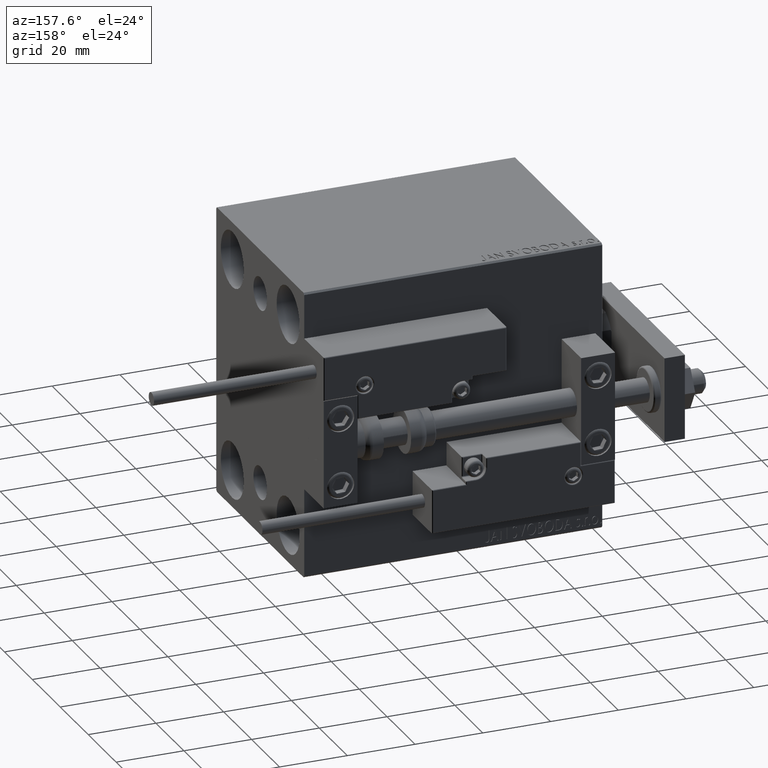
[diagram: clean part render]
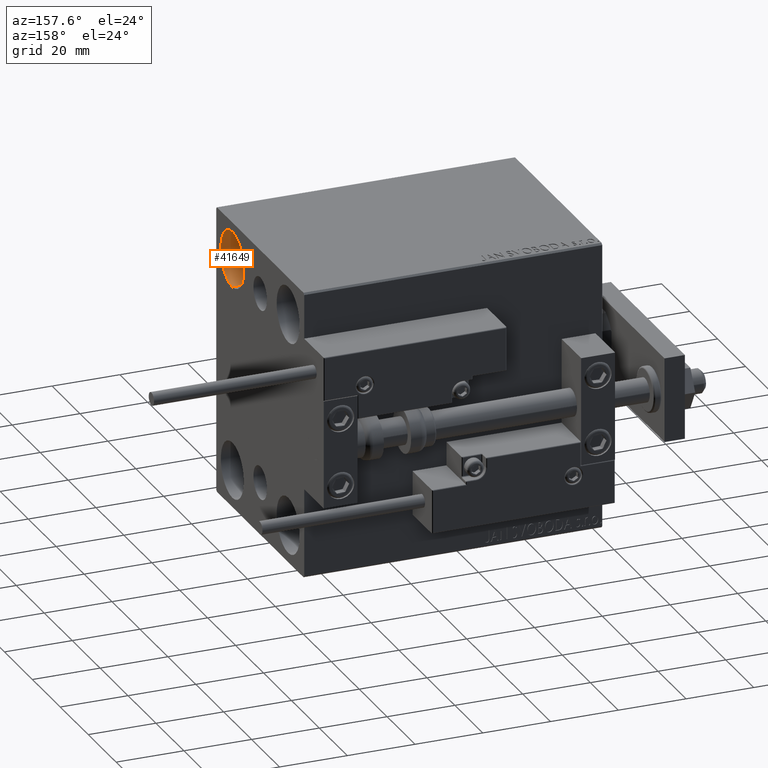
[diagram: same view with one face highlighted and labeled with its STEP entity id]
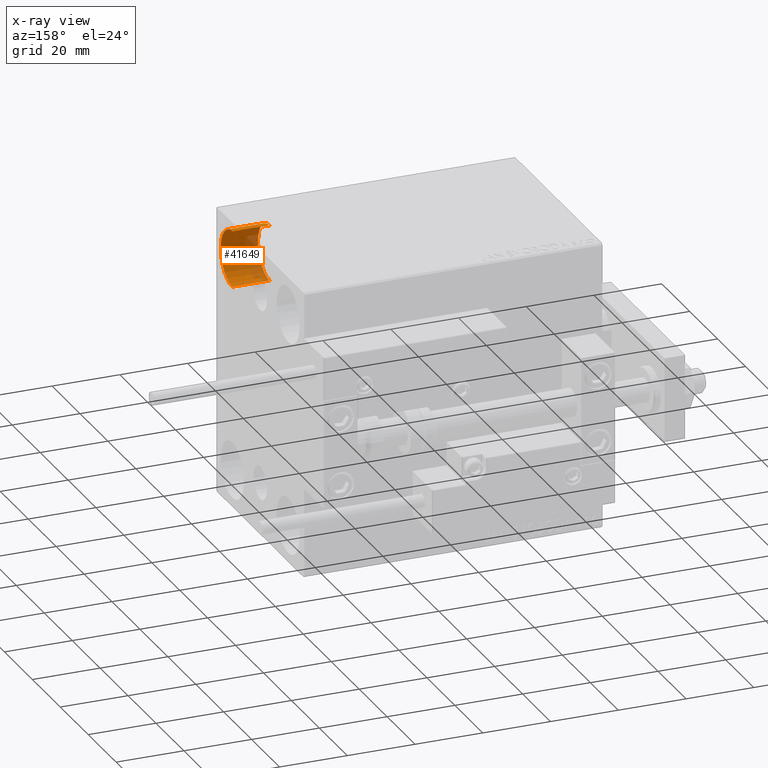
[diagram: x-ray of the same camera — body ghosted, the highlighted face saturated]
A machine part, auxiliary view. The second image highlights one B-rep face of the part: STEP entity #41649.
The next image is the same camera in x-ray: the body ghosted, the highlighted face saturated — about 26% of this face is hidden behind the body in this view.
In plain terms, the highlighted cylindrical surface (edge-blend (fillet) strip) has radius 8.25 mm, axis along (1, 0, 0).
Its self-contained STEP definition (entity closure, byte-faithful):
#1454 = CARTESIAN_POINT ( 'NONE',  ( 88.00000000000000000, -19.99999999999999645, 23.25000000000000355 ) ) ;
#1507 = DIRECTION ( 'NONE',  ( 1.000000000000000000, -0.000000000000000000, -0.000000000000000000 ) ) ;
#1946 = CARTESIAN_POINT ( 'NONE',  ( 77.00000000000000000, -19.99999999999999645, 23.25000000000000355 ) ) ;
#2304 = CARTESIAN_POINT ( 'NONE',  ( 88.00000000000000000, -19.99999999999999645, 39.74999999999999289 ) ) ;
#5298 = FACE_OUTER_BOUND ( 'NONE', #9121, .T. ) ;
#6286 = EDGE_CURVE ( 'NONE', #23337, #9445, #39621, .T. ) ;
#6374 = AXIS2_PLACEMENT_3D ( 'NONE', #32642, #1507, #13400 ) ;
#9121 = EDGE_LOOP ( 'NONE', ( #43619, #34884, #30736, #12654 ) ) ;
#9445 = VERTEX_POINT ( 'NONE', #2304 ) ;
#11093 = DIRECTION ( 'NONE',  ( -1.000000000000000000, -0.000000000000000000, -0.000000000000000000 ) ) ;
#11442 = CARTESIAN_POINT ( 'NONE',  ( 88.00000000000000000, -19.99999999999999645, 31.50000000000000000 ) ) ;
#12654 = ORIENTED_EDGE ( 'NONE', *, *, #32515, .F. ) ;
#13400 = DIRECTION ( 'NONE',  ( 0.000000000000000000, 0.000000000000000000, -1.000000000000000000 ) ) ;
#16088 = DIRECTION ( 'NONE',  ( 1.000000000000000000, -0.000000000000000000, -0.000000000000000000 ) ) ;
#19215 = VERTEX_POINT ( 'NONE', #48122 ) ;
#19291 = DIRECTION ( 'NONE',  ( -1.000000000000000000, -0.000000000000000000, -0.000000000000000000 ) ) ;
#23337 = VERTEX_POINT ( 'NONE', #24816 ) ;
#23846 = AXIS2_PLACEMENT_3D ( 'NONE', #11442, #19291, #45616 ) ;
#24555 = CYLINDRICAL_SURFACE ( 'NONE', #6374, 8.249999999999996447 ) ;
#24666 = VECTOR ( 'NONE', #16088, 1000.000000000000000 ) ;
#24816 = CARTESIAN_POINT ( 'NONE',  ( 77.00000000000000000, -19.99999999999999645, 39.74999999999999289 ) ) ;
#25042 = EDGE_CURVE ( 'NONE', #32555, #9445, #34373, .T. ) ;
#28548 = LINE ( 'NONE', #1946, #42554 ) ;
#29048 = DIRECTION ( 'NONE',  ( 1.000000000000000000, -0.000000000000000000, -0.000000000000000000 ) ) ;
#30736 = ORIENTED_EDGE ( 'NONE', *, *, #25042, .F. ) ;
#32515 = EDGE_CURVE ( 'NONE', #19215, #32555, #28548, .T. ) ;
#32555 = VERTEX_POINT ( 'NONE', #1454 ) ;
#32642 = CARTESIAN_POINT ( 'NONE',  ( 77.00000000000000000, -19.99999999999999645, 31.50000000000000000 ) ) ;
#34373 = CIRCLE ( 'NONE', #23846, 8.249999999999992895 ) ;
#34884 = ORIENTED_EDGE ( 'NONE', *, *, #6286, .T. ) ;
#37676 = DIRECTION ( 'NONE',  ( 0.000000000000000000, 0.000000000000000000, 1.000000000000000000 ) ) ;
#39621 = LINE ( 'NONE', #43165, #24666 ) ;
#41649 = ADVANCED_FACE ( 'NONE', ( #5298 ), #24555, .F. ) ;
#42554 = VECTOR ( 'NONE', #29048, 1000.000000000000000 ) ;
#43165 = CARTESIAN_POINT ( 'NONE',  ( 77.00000000000000000, -19.99999999999999645, 39.74999999999999289 ) ) ;
#43619 = ORIENTED_EDGE ( 'NONE', *, *, #47252, .T. ) ;
#45616 = DIRECTION ( 'NONE',  ( 0.000000000000000000, 0.000000000000000000, 1.000000000000000000 ) ) ;
#45762 = CARTESIAN_POINT ( 'NONE',  ( 77.00000000000000000, -19.99999999999999645, 31.50000000000000000 ) ) ;
#45882 = CIRCLE ( 'NONE', #47507, 8.249999999999992895 ) ;
#47252 = EDGE_CURVE ( 'NONE', #19215, #23337, #45882, .T. ) ;
#47507 = AXIS2_PLACEMENT_3D ( 'NONE', #45762, #11093, #37676 ) ;
#48122 = CARTESIAN_POINT ( 'NONE',  ( 77.00000000000000000, -19.99999999999999645, 23.25000000000000355 ) ) ;